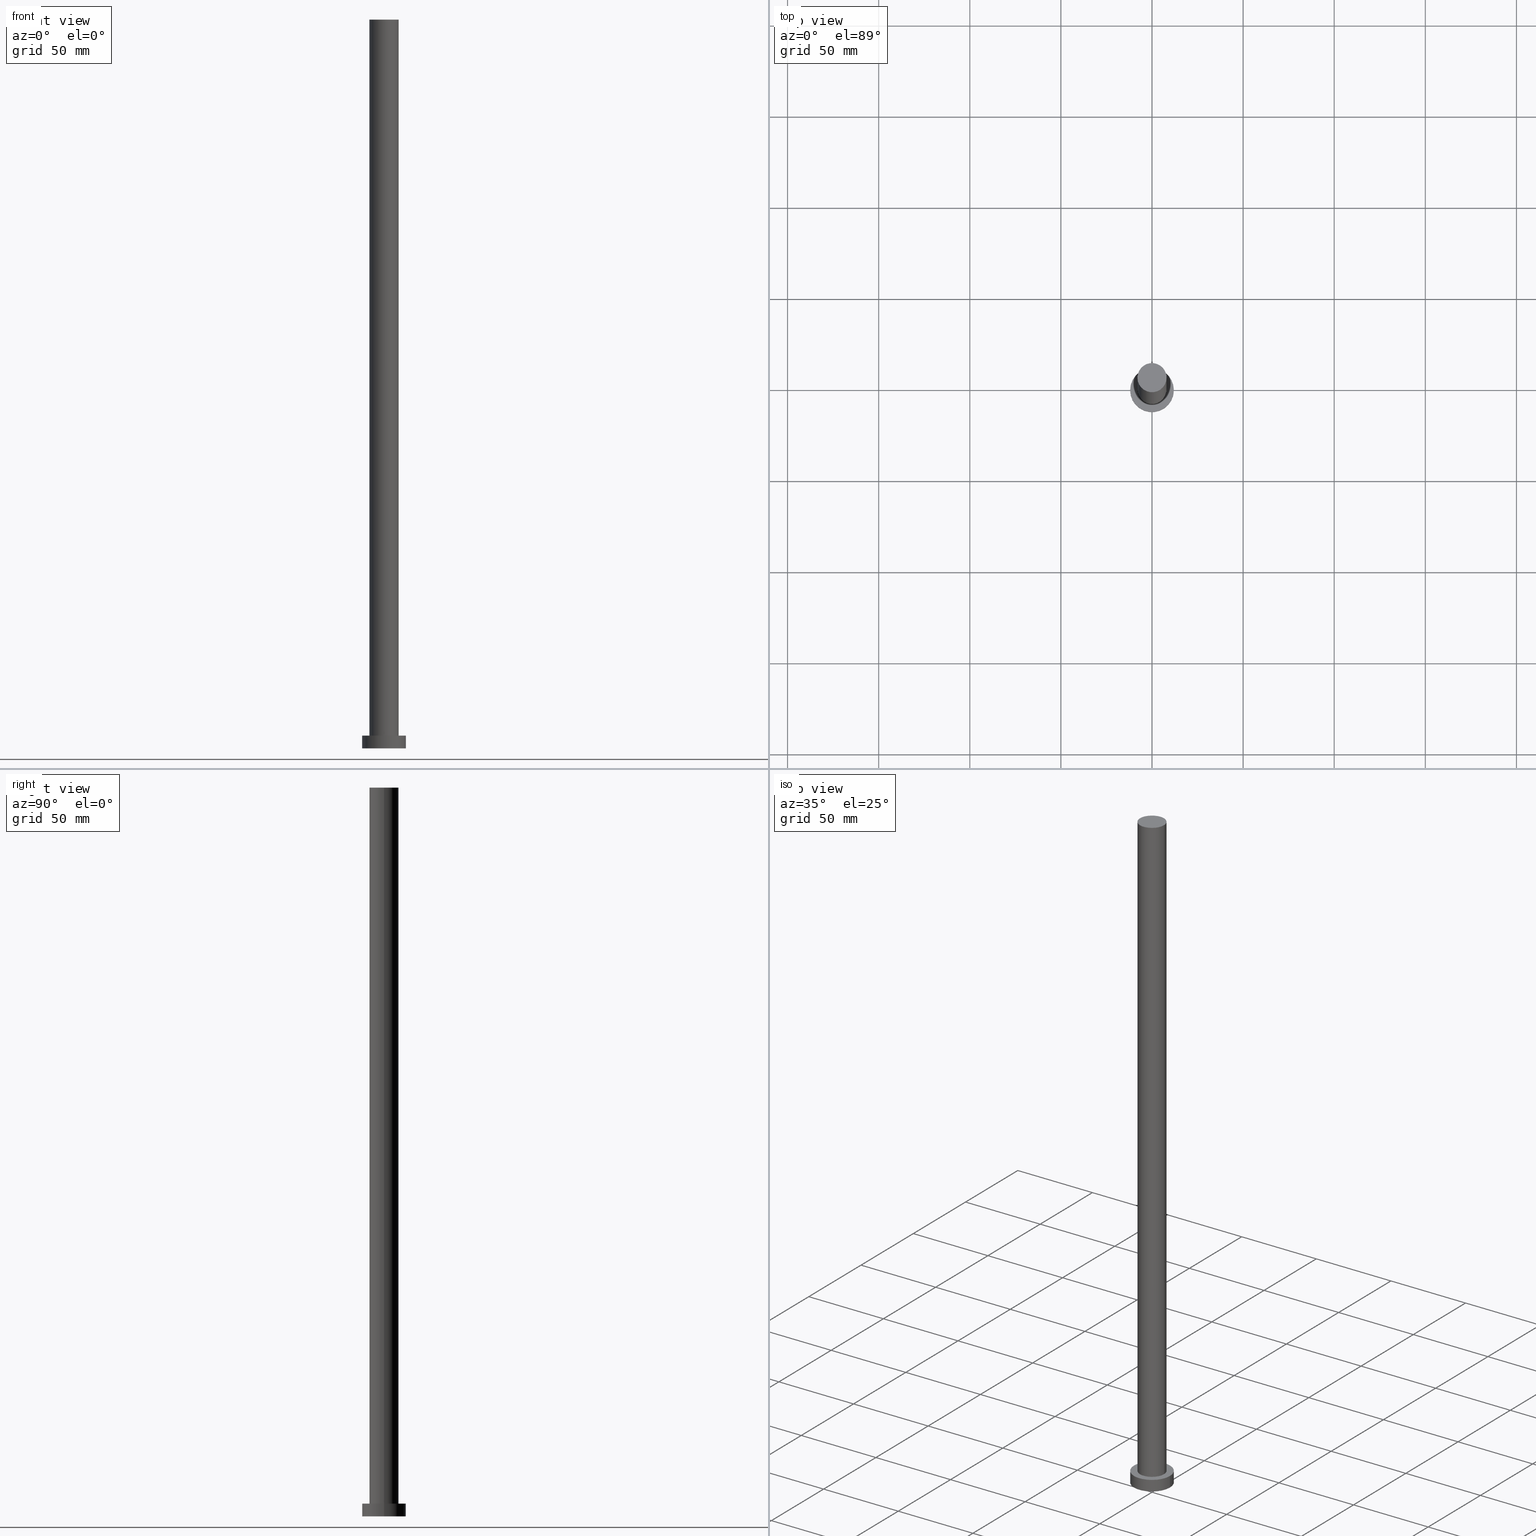
[diagram: canonical four-view strip — front | top / right | iso, engineering-drawing reading convention]
A machine part, canonical four-view strip (front | top / right | iso — engineering-drawing reading convention). The complete STEP part file that produces these views, byte-faithful:
ISO-10303-21;
HEADER;
FILE_DESCRIPTION (( 'STEP AP203' ),
    '1' );
FILE_NAME ('c2b3.STEP',
    '2023-02-13T09:43:37',
    ( '' ),
    ( '' ),
    'SwSTEP 2.0',
    'SolidWorks 2019',
    '' );
FILE_SCHEMA (( 'CONFIG_CONTROL_DESIGN' ));
ENDSEC;

DATA;
#1 = CIRCLE ( 'NONE', #105, 12.00000000000000178 ) ;
#2 = DIRECTION ( 'NONE',  ( 1.000000000000000000, 0.000000000000000000, 0.000000000000000000 ) ) ;
#3 = CYLINDRICAL_SURFACE ( 'NONE', #87, 8.000000000000000000 ) ;
#4 = PRODUCT_DEFINITION_FORMATION_WITH_SPECIFIED_SOURCE ( 'LIBOVOLN�', '', #58, .NOT_KNOWN. ) ;
#5 = ADVANCED_FACE ( 'NONE', ( #111 ), #90, .T. ) ;
#6 = DIRECTION ( 'NONE',  ( 1.000000000000000000, 0.000000000000000000, 0.000000000000000000 ) ) ;
#7 = CALENDAR_DATE ( 2023, 13, 2 ) ;
#8 = CIRCLE ( 'NONE', #45, 12.00000000000000178 ) ;
#9 = CIRCLE ( 'NONE', #115, 8.000000000000000000 ) ;
#10 = APPROVAL_PERSON_ORGANIZATION ( #183, #193, #248 ) ;
#11 = PERSON_AND_ORGANIZATION ( #56, #141 ) ;
#12 = ORIENTED_EDGE ( 'NONE', *, *, #31, .T. ) ;
#13 = PRODUCT_DEFINITION ( 'NEZN�M�', '', #4, #251 ) ;
#14 = COORDINATED_UNIVERSAL_TIME_OFFSET ( 1, 0, .AHEAD. ) ;
#15 = CALENDAR_DATE ( 2023, 13, 2 ) ;
#16 = CYLINDRICAL_SURFACE ( 'NONE', #207, 12.00000000000000178 ) ;
#17 = CARTESIAN_POINT ( 'NONE',  ( 0.000000000000000000, 0.000000000000000000, 400.0000000000000000 ) ) ;
#18 = LOCAL_TIME ( 10, 43, 37.00000000000000000, #14 ) ;
#19 = DIRECTION ( 'NONE',  ( 0.000000000000000000, 0.000000000000000000, 1.000000000000000000 ) ) ;
#20 = DIRECTION ( 'NONE',  ( 1.000000000000000000, 0.000000000000000000, 0.000000000000000000 ) ) ;
#21 = ADVANCED_FACE ( 'NONE', ( #195 ), #137, .T. ) ;
#22 = DIRECTION ( 'NONE',  ( -0.000000000000000000, -0.000000000000000000, -1.000000000000000000 ) ) ;
#23 = CARTESIAN_POINT ( 'NONE',  ( 0.000000000000000000, 0.000000000000000000, 0.000000000000000000 ) ) ;
#24 = CLOSED_SHELL ( 'NONE', ( #52, #164, #5, #25, #127, #131, #21 ) ) ;
#25 = ADVANCED_FACE ( 'NONE', ( #236, #216 ), #234, .T. ) ;
#26 = AXIS2_PLACEMENT_3D ( 'NONE', #60, #43, #119 ) ;
#27 = PERSON_AND_ORGANIZATION ( #56, #141 ) ;
#28 = APPROVAL_ROLE ( '' ) ;
#29 = LOCAL_TIME ( 10, 43, 37.00000000000000000, #226 ) ;
#30 = COORDINATED_UNIVERSAL_TIME_OFFSET ( 1, 0, .AHEAD. ) ;
#31 = EDGE_CURVE ( 'NONE', #247, #199, #8, .T. ) ;
#32 = ORIENTED_EDGE ( 'NONE', *, *, #186, .T. ) ;
#33 = PERSON_AND_ORGANIZATION ( #56, #141 ) ;
#34 = CALENDAR_DATE ( 2023, 13, 2 ) ;
#35 = AXIS2_PLACEMENT_3D ( 'NONE', #17, #91, #112 ) ;
#36 = VERTEX_POINT ( 'NONE', #97 ) ;
#37 = AXIS2_PLACEMENT_3D ( 'NONE', #208, #19, #41 ) ;
#38 = ORIENTED_EDGE ( 'NONE', *, *, #217, .F. ) ;
#39 = CARTESIAN_POINT ( 'NONE',  ( 12.00000000000000178, 1.469576158976824144E-15, 7.000000000000000000 ) ) ;
#40 = DIRECTION ( 'NONE',  ( -0.000000000000000000, -0.000000000000000000, -1.000000000000000000 ) ) ;
#41 = DIRECTION ( 'NONE',  ( 1.000000000000000000, 0.000000000000000000, 0.000000000000000000 ) ) ;
#42 = UNCERTAINTY_MEASURE_WITH_UNIT (LENGTH_MEASURE( 1.000000000000000082E-05 ), #138, 'distance_accuracy_value', 'NONE');
#43 = DIRECTION ( 'NONE',  ( 0.000000000000000000, 0.000000000000000000, 1.000000000000000000 ) ) ;
#44 = MECHANICAL_CONTEXT ( 'NONE', #210, 'mechanical' ) ;
#45 = AXIS2_PLACEMENT_3D ( 'NONE', #192, #140, #62 ) ;
#46 = CARTESIAN_POINT ( 'NONE',  ( 8.000000000000000000, 9.797174393178825657E-16, 7.000000000000000000 ) ) ;
#47 = EDGE_CURVE ( 'NONE', #72, #201, #215, .T. ) ;
#48 = CARTESIAN_POINT ( 'NONE',  ( 0.000000000000000000, 0.000000000000000000, 400.0000000000000000 ) ) ;
#49 = PERSON_AND_ORGANIZATION ( #56, #141 ) ;
#50 = ORIENTED_EDGE ( 'NONE', *, *, #70, .T. ) ;
#51 = PERSON_AND_ORGANIZATION_ROLE ( 'design_owner' ) ;
#52 = ADVANCED_FACE ( 'NONE', ( #143 ), #3, .T. ) ;
#53 = SECURITY_CLASSIFICATION ( '', '', #225 ) ;
#54 = APPROVAL_STATUS ( 'not_yet_approved' ) ;
#55 = ORIENTED_EDGE ( 'NONE', *, *, #181, .T. ) ;
#56 = PERSON ( 'NEUR�EN�', 'NEUR�EN�', 'NEUR�EN�', ('NEUR�EN�'), ('NEUR�EN�'), ('NEUR�EN�') ) ;
#57 = MANIFOLD_SOLID_BREP ( 'P�idat vysunut�m3', #24 ) ;
#58 = PRODUCT ( 'c2b3', 'c2b3', '', ( #44 ) ) ;
#59 = FACE_OUTER_BOUND ( 'NONE', #65, .T. ) ;
#60 = CARTESIAN_POINT ( 'NONE',  ( 0.000000000000000000, 0.000000000000000000, 7.000000000000000000 ) ) ;
#61 = AXIS2_PLACEMENT_3D ( 'NONE', #23, #174, #20 ) ;
#62 = DIRECTION ( 'NONE',  ( 1.000000000000000000, 0.000000000000000000, 0.000000000000000000 ) ) ;
#63 = DIRECTION ( 'NONE',  ( -0.000000000000000000, -0.000000000000000000, -1.000000000000000000 ) ) ;
#64 = ORIENTED_EDGE ( 'NONE', *, *, #233, .F. ) ;
#65 = EDGE_LOOP ( 'NONE', ( #203, #55, #32, #129 ) ) ;
#66 = PERSON_AND_ORGANIZATION_ROLE ( 'design_supplier' ) ;
#67 = ORIENTED_EDGE ( 'NONE', *, *, #74, .T. ) ;
#68 = PERSON_AND_ORGANIZATION_ROLE ( 'creator' ) ;
#69 = DATE_AND_TIME ( #34, #18 ) ;
#70 = EDGE_CURVE ( 'NONE', #128, #218, #176, .T. ) ;
#71 = ORIENTED_EDGE ( 'NONE', *, *, #47, .T. ) ;
#72 = VERTEX_POINT ( 'NONE', #153 ) ;
#73 = LINE ( 'NONE', #136, #83 ) ;
#74 = EDGE_CURVE ( 'NONE', #101, #36, #197, .T. ) ;
#75 = CARTESIAN_POINT ( 'NONE',  ( 0.000000000000000000, 0.000000000000000000, 7.000000000000000000 ) ) ;
#76 = CARTESIAN_POINT ( 'NONE',  ( 8.000000000000000000, 9.797174393178825657E-16, 400.0000000000000000 ) ) ;
#77 = DIRECTION ( 'NONE',  ( -0.000000000000000000, -0.000000000000000000, -1.000000000000000000 ) ) ;
#78 = CIRCLE ( 'NONE', #37, 12.00000000000000178 ) ;
#79 =( NAMED_UNIT ( * ) PLANE_ANGLE_UNIT ( ) SI_UNIT ( $, .RADIAN. ) );
#80 =( GEOMETRIC_REPRESENTATION_CONTEXT ( 3 ) GLOBAL_UNCERTAINTY_ASSIGNED_CONTEXT ( ( #42 ) ) GLOBAL_UNIT_ASSIGNED_CONTEXT ( ( #138, #79, #214 ) ) REPRESENTATION_CONTEXT ( 'NONE', 'WORKASPACE' ) );
#81 = ORIENTED_EDGE ( 'NONE', *, *, #118, .F. ) ;
#82 = APPROVAL_ROLE ( '' ) ;
#83 = VECTOR ( 'NONE', #132, 1000.000000000000000 ) ;
#84 = APPROVAL ( #125, 'NEUR�EN�' ) ;
#85 = EDGE_LOOP ( 'NONE', ( #103, #124, #158, #242 ) ) ;
#86 = APPROVAL_STATUS ( 'not_yet_approved' ) ;
#87 = AXIS2_PLACEMENT_3D ( 'NONE', #48, #94, #254 ) ;
#88 = EDGE_LOOP ( 'NONE', ( #12, #230 ) ) ;
#89 = APPROVAL_DATE_TIME ( #146, #193 ) ;
#90 = CYLINDRICAL_SURFACE ( 'NONE', #110, 12.00000000000000178 ) ;
#91 = DIRECTION ( 'NONE',  ( 0.000000000000000000, 0.000000000000000000, 1.000000000000000000 ) ) ;
#92 = APPLICATION_CONTEXT ( 'configuration controlled 3d designs of mechanical parts and assemblies' ) ;
#93 = PLANE ( 'NONE',  #173 ) ;
#94 = DIRECTION ( 'NONE',  ( -0.000000000000000000, -0.000000000000000000, -1.000000000000000000 ) ) ;
#95 = DIRECTION ( 'NONE',  ( -0.000000000000000000, -0.000000000000000000, -1.000000000000000000 ) ) ;
#96 = CYLINDRICAL_SURFACE ( 'NONE', #98, 8.000000000000000000 ) ;
#97 = CARTESIAN_POINT ( 'NONE',  ( -8.000000000000000000, 0.000000000000000000, 400.0000000000000000 ) ) ;
#98 = AXIS2_PLACEMENT_3D ( 'NONE', #134, #40, #130 ) ;
#99 = CARTESIAN_POINT ( 'NONE',  ( 8.000000000000000000, 9.797174393178825657E-16, 400.0000000000000000 ) ) ;
#100 = EDGE_LOOP ( 'NONE', ( #240, #178 ) ) ;
#101 = VERTEX_POINT ( 'NONE', #76 ) ;
#102 = DATE_TIME_ROLE ( 'classification_date' ) ;
#103 = ORIENTED_EDGE ( 'NONE', *, *, #74, .F. ) ;
#104 = CALENDAR_DATE ( 2023, 13, 2 ) ;
#105 = AXIS2_PLACEMENT_3D ( 'NONE', #189, #250, #231 ) ;
#106 = PERSON_AND_ORGANIZATION ( #56, #141 ) ;
#107 = CC_DESIGN_PERSON_AND_ORGANIZATION_ASSIGNMENT ( #106, #224, ( #13 ) ) ;
#108 = PERSON_AND_ORGANIZATION_ROLE ( 'classification_officer' ) ;
#109 = COORDINATED_UNIVERSAL_TIME_OFFSET ( 1, 0, .AHEAD. ) ;
#110 = AXIS2_PLACEMENT_3D ( 'NONE', #154, #95, #135 ) ;
#111 = FACE_OUTER_BOUND ( 'NONE', #223, .T. ) ;
#112 = DIRECTION ( 'NONE',  ( 1.000000000000000000, 0.000000000000000000, 0.000000000000000000 ) ) ;
#113 = CARTESIAN_POINT ( 'NONE',  ( 0.000000000000000000, 0.000000000000000000, 7.000000000000000000 ) ) ;
#114 = CARTESIAN_POINT ( 'NONE',  ( 0.000000000000000000, 0.000000000000000000, 7.000000000000000000 ) ) ;
#115 = AXIS2_PLACEMENT_3D ( 'NONE', #229, #133, #6 ) ;
#116 = LINE ( 'NONE', #99, #175 ) ;
#117 = VECTOR ( 'NONE', #212, 1000.000000000000000 ) ;
#118 = EDGE_CURVE ( 'NONE', #218, #128, #184, .T. ) ;
#119 = DIRECTION ( 'NONE',  ( 1.000000000000000000, 0.000000000000000000, -0.000000000000000000 ) ) ;
#120 = DIRECTION ( 'NONE',  ( 0.000000000000000000, 0.000000000000000000, 1.000000000000000000 ) ) ;
#121 = ORIENTED_EDGE ( 'NONE', *, *, #70, .F. ) ;
#122 = EDGE_CURVE ( 'NONE', #199, #247, #1, .T. ) ;
#123 = APPROVAL_DATE_TIME ( #182, #84 ) ;
#124 = ORIENTED_EDGE ( 'NONE', *, *, #233, .T. ) ;
#125 = APPROVAL_STATUS ( 'not_yet_approved' ) ;
#126 = DATE_AND_TIME ( #104, #155 ) ;
#127 = ADVANCED_FACE ( 'NONE', ( #188 ), #93, .F. ) ;
#128 = VERTEX_POINT ( 'NONE', #169 ) ;
#129 = ORIENTED_EDGE ( 'NONE', *, *, #148, .F. ) ;
#130 = DIRECTION ( 'NONE',  ( -1.000000000000000000, 0.000000000000000000, 0.000000000000000000 ) ) ;
#131 = ADVANCED_FACE ( 'NONE', ( #149 ), #96, .T. ) ;
#132 = DIRECTION ( 'NONE',  ( -0.000000000000000000, -0.000000000000000000, -1.000000000000000000 ) ) ;
#133 = DIRECTION ( 'NONE',  ( 0.000000000000000000, 0.000000000000000000, 1.000000000000000000 ) ) ;
#134 = CARTESIAN_POINT ( 'NONE',  ( 0.000000000000000000, 0.000000000000000000, 400.0000000000000000 ) ) ;
#135 = DIRECTION ( 'NONE',  ( -1.000000000000000000, 0.000000000000000000, 0.000000000000000000 ) ) ;
#136 = CARTESIAN_POINT ( 'NONE',  ( -8.000000000000000000, 0.000000000000000000, 400.0000000000000000 ) ) ;
#137 = PLANE ( 'NONE',  #237 ) ;
#138 =( LENGTH_UNIT ( ) NAMED_UNIT ( * ) SI_UNIT ( .MILLI., .METRE. ) );
#139 = PRODUCT_DEFINITION_SHAPE ( 'NONE', 'NONE',  #13 ) ;
#140 = DIRECTION ( 'NONE',  ( 0.000000000000000000, 0.000000000000000000, 1.000000000000000000 ) ) ;
#141 = ORGANIZATION ( 'NEUR�EN�', 'NEUR�EN�', '' ) ;
#142 = CC_DESIGN_DATE_AND_TIME_ASSIGNMENT ( #126, #102, ( #53 ) ) ;
#143 = FACE_OUTER_BOUND ( 'NONE', #85, .T. ) ;
#144 = APPLICATION_PROTOCOL_DEFINITION ( 'international standard', 'config_control_design', 1994, #210 ) ;
#145 = ORIENTED_EDGE ( 'NONE', *, *, #148, .T. ) ;
#146 = DATE_AND_TIME ( #15, #29 ) ;
#147 = COORDINATED_UNIVERSAL_TIME_OFFSET ( 1, 0, .AHEAD. ) ;
#148 = EDGE_CURVE ( 'NONE', #247, #72, #172, .T. ) ;
#149 = FACE_OUTER_BOUND ( 'NONE', #243, .T. ) ;
#150 = CARTESIAN_POINT ( 'NONE',  ( 12.00000000000000178, 1.469576158976824144E-15, 0.000000000000000000 ) ) ;
#151 = CARTESIAN_POINT ( 'NONE',  ( 0.000000000000000000, 0.000000000000000000, 0.000000000000000000 ) ) ;
#152 = DIRECTION ( 'NONE',  ( 1.000000000000000000, 0.000000000000000000, -0.000000000000000000 ) ) ;
#153 = CARTESIAN_POINT ( 'NONE',  ( -12.00000000000000178, 0.000000000000000000, 0.000000000000000000 ) ) ;
#154 = CARTESIAN_POINT ( 'NONE',  ( 0.000000000000000000, 0.000000000000000000, 7.000000000000000000 ) ) ;
#155 = LOCAL_TIME ( 10, 43, 37.00000000000000000, #30 ) ;
#156 = CARTESIAN_POINT ( 'NONE',  ( -12.00000000000000178, 0.000000000000000000, 7.000000000000000000 ) ) ;
#157 = ADVANCED_BREP_SHAPE_REPRESENTATION ( 'c2b3', ( #57, #253 ), #80 ) ;
#158 = ORIENTED_EDGE ( 'NONE', *, *, #118, .T. ) ;
#159 = AXIS2_PLACEMENT_3D ( 'NONE', #114, #235, #2 ) ;
#160 = ORIENTED_EDGE ( 'NONE', *, *, #177, .T. ) ;
#161 = DATE_TIME_ROLE ( 'creation_date' ) ;
#162 = AXIS2_PLACEMENT_3D ( 'NONE', #75, #166, #227 ) ;
#163 = EDGE_LOOP ( 'NONE', ( #221, #67 ) ) ;
#164 = ADVANCED_FACE ( 'NONE', ( #59 ), #16, .T. ) ;
#165 = LINE ( 'NONE', #170, #117 ) ;
#166 = DIRECTION ( 'NONE',  ( 0.000000000000000000, 0.000000000000000000, 1.000000000000000000 ) ) ;
#167 = CC_DESIGN_APPROVAL ( #84, ( #13 ) ) ;
#168 = APPROVAL_PERSON_ORGANIZATION ( #49, #84, #28 ) ;
#169 = CARTESIAN_POINT ( 'NONE',  ( -8.000000000000000000, 0.000000000000000000, 7.000000000000000000 ) ) ;
#170 = CARTESIAN_POINT ( 'NONE',  ( 12.00000000000000178, 1.469576158976824144E-15, 7.000000000000000000 ) ) ;
#171 = CARTESIAN_POINT ( 'NONE',  ( 0.000000000000000000, 0.000000000000000000, 400.0000000000000000 ) ) ;
#172 = LINE ( 'NONE', #232, #220 ) ;
#173 = AXIS2_PLACEMENT_3D ( 'NONE', #151, #209, #191 ) ;
#174 = DIRECTION ( 'NONE',  ( 0.000000000000000000, 0.000000000000000000, 1.000000000000000000 ) ) ;
#175 = VECTOR ( 'NONE', #63, 1000.000000000000000 ) ;
#176 = CIRCLE ( 'NONE', #162, 8.000000000000000000 ) ;
#177 = EDGE_CURVE ( 'NONE', #36, #128, #73, .T. ) ;
#178 = ORIENTED_EDGE ( 'NONE', *, *, #186, .F. ) ;
#179 = DATE_AND_TIME ( #198, #194 ) ;
#180 = CC_DESIGN_APPROVAL ( #193, ( #53 ) ) ;
#181 = EDGE_CURVE ( 'NONE', #199, #201, #165, .T. ) ;
#182 = DATE_AND_TIME ( #7, #239 ) ;
#183 = PERSON_AND_ORGANIZATION ( #56, #141 ) ;
#184 = CIRCLE ( 'NONE', #159, 8.000000000000000000 ) ;
#185 = PERSON_AND_ORGANIZATION ( #56, #141 ) ;
#186 = EDGE_CURVE ( 'NONE', #201, #72, #78, .T. ) ;
#187 = APPROVAL_PERSON_ORGANIZATION ( #11, #228, #82 ) ;
#188 = FACE_OUTER_BOUND ( 'NONE', #100, .T. ) ;
#189 = CARTESIAN_POINT ( 'NONE',  ( 0.000000000000000000, 0.000000000000000000, 7.000000000000000000 ) ) ;
#190 = CC_DESIGN_SECURITY_CLASSIFICATION ( #53, ( #4 ) ) ;
#191 = DIRECTION ( 'NONE',  ( 1.000000000000000000, 0.000000000000000000, -0.000000000000000000 ) ) ;
#192 = CARTESIAN_POINT ( 'NONE',  ( 0.000000000000000000, 0.000000000000000000, 7.000000000000000000 ) ) ;
#193 = APPROVAL ( #86, 'NEUR�EN�' ) ;
#194 = LOCAL_TIME ( 10, 43, 37.00000000000000000, #147 ) ;
#195 = FACE_OUTER_BOUND ( 'NONE', #163, .T. ) ;
#196 = DIRECTION ( 'NONE',  ( 1.000000000000000000, 0.000000000000000000, 0.000000000000000000 ) ) ;
#197 = CIRCLE ( 'NONE', #35, 8.000000000000000000 ) ;
#198 = CALENDAR_DATE ( 2023, 13, 2 ) ;
#199 = VERTEX_POINT ( 'NONE', #39 ) ;
#200 = PRODUCT_RELATED_PRODUCT_CATEGORY ( 'detail', '', ( #58 ) ) ;
#201 = VERTEX_POINT ( 'NONE', #150 ) ;
#202 = APPROVAL_DATE_TIME ( #69, #228 ) ;
#203 = ORIENTED_EDGE ( 'NONE', *, *, #122, .F. ) ;
#204 = SHAPE_DEFINITION_REPRESENTATION ( #139, #157 ) ;
#205 = ORIENTED_EDGE ( 'NONE', *, *, #181, .F. ) ;
#206 = CC_DESIGN_DATE_AND_TIME_ASSIGNMENT ( #179, #161, ( #13 ) ) ;
#207 = AXIS2_PLACEMENT_3D ( 'NONE', #113, #22, #211 ) ;
#208 = CARTESIAN_POINT ( 'NONE',  ( 0.000000000000000000, 0.000000000000000000, 0.000000000000000000 ) ) ;
#209 = DIRECTION ( 'NONE',  ( 0.000000000000000000, 0.000000000000000000, 1.000000000000000000 ) ) ;
#210 = APPLICATION_CONTEXT ( 'configuration controlled 3d designs of mechanical parts and assemblies' ) ;
#211 = DIRECTION ( 'NONE',  ( -1.000000000000000000, 0.000000000000000000, 0.000000000000000000 ) ) ;
#212 = DIRECTION ( 'NONE',  ( -0.000000000000000000, -0.000000000000000000, -1.000000000000000000 ) ) ;
#213 = CC_DESIGN_PERSON_AND_ORGANIZATION_ASSIGNMENT ( #33, #68, ( #4 ) ) ;
#214 =( NAMED_UNIT ( * ) SI_UNIT ( $, .STERADIAN. ) SOLID_ANGLE_UNIT ( ) );
#215 = CIRCLE ( 'NONE', #61, 12.00000000000000178 ) ;
#216 = FACE_OUTER_BOUND ( 'NONE', #88, .T. ) ;
#217 = EDGE_CURVE ( 'NONE', #36, #101, #9, .T. ) ;
#218 = VERTEX_POINT ( 'NONE', #46 ) ;
#219 = ORIENTED_EDGE ( 'NONE', *, *, #31, .F. ) ;
#220 = VECTOR ( 'NONE', #77, 1000.000000000000000 ) ;
#221 = ORIENTED_EDGE ( 'NONE', *, *, #217, .T. ) ;
#222 = CC_DESIGN_PERSON_AND_ORGANIZATION_ASSIGNMENT ( #27, #66, ( #4 ) ) ;
#223 = EDGE_LOOP ( 'NONE', ( #205, #219, #145, #71 ) ) ;
#224 = PERSON_AND_ORGANIZATION_ROLE ( 'creator' ) ;
#225 = SECURITY_CLASSIFICATION_LEVEL ( 'unclassified' ) ;
#226 = COORDINATED_UNIVERSAL_TIME_OFFSET ( 1, 0, .AHEAD. ) ;
#227 = DIRECTION ( 'NONE',  ( 1.000000000000000000, 0.000000000000000000, 0.000000000000000000 ) ) ;
#228 = APPROVAL ( #54, 'NEUR�EN�' ) ;
#229 = CARTESIAN_POINT ( 'NONE',  ( 0.000000000000000000, 0.000000000000000000, 400.0000000000000000 ) ) ;
#230 = ORIENTED_EDGE ( 'NONE', *, *, #122, .T. ) ;
#231 = DIRECTION ( 'NONE',  ( 1.000000000000000000, 0.000000000000000000, 0.000000000000000000 ) ) ;
#232 = CARTESIAN_POINT ( 'NONE',  ( -12.00000000000000178, 0.000000000000000000, 7.000000000000000000 ) ) ;
#233 = EDGE_CURVE ( 'NONE', #101, #218, #116, .T. ) ;
#234 = PLANE ( 'NONE',  #26 ) ;
#235 = DIRECTION ( 'NONE',  ( 0.000000000000000000, 0.000000000000000000, 1.000000000000000000 ) ) ;
#236 = FACE_BOUND ( 'NONE', #246, .T. ) ;
#237 = AXIS2_PLACEMENT_3D ( 'NONE', #171, #238, #152 ) ;
#238 = DIRECTION ( 'NONE',  ( 0.000000000000000000, 0.000000000000000000, 1.000000000000000000 ) ) ;
#239 = LOCAL_TIME ( 10, 43, 37.00000000000000000, #109 ) ;
#240 = ORIENTED_EDGE ( 'NONE', *, *, #47, .F. ) ;
#241 = CARTESIAN_POINT ( 'NONE',  ( 0.000000000000000000, 0.000000000000000000, 0.000000000000000000 ) ) ;
#242 = ORIENTED_EDGE ( 'NONE', *, *, #177, .F. ) ;
#243 = EDGE_LOOP ( 'NONE', ( #64, #38, #160, #50 ) ) ;
#244 = APPLICATION_PROTOCOL_DEFINITION ( 'international standard', 'config_control_design', 1994, #92 ) ;
#245 = CC_DESIGN_APPROVAL ( #228, ( #4 ) ) ;
#246 = EDGE_LOOP ( 'NONE', ( #121, #81 ) ) ;
#247 = VERTEX_POINT ( 'NONE', #156 ) ;
#248 = APPROVAL_ROLE ( '' ) ;
#249 = PERSON_AND_ORGANIZATION ( #56, #141 ) ;
#250 = DIRECTION ( 'NONE',  ( 0.000000000000000000, 0.000000000000000000, 1.000000000000000000 ) ) ;
#251 = DESIGN_CONTEXT ( 'detailed design', #92, 'design' ) ;
#252 = CC_DESIGN_PERSON_AND_ORGANIZATION_ASSIGNMENT ( #185, #108, ( #53 ) ) ;
#253 = AXIS2_PLACEMENT_3D ( 'NONE', #241, #120, #196 ) ;
#254 = DIRECTION ( 'NONE',  ( -1.000000000000000000, 0.000000000000000000, 0.000000000000000000 ) ) ;
#255 = CC_DESIGN_PERSON_AND_ORGANIZATION_ASSIGNMENT ( #249, #51, ( #58 ) ) ;
ENDSEC;
END-ISO-10303-21;
